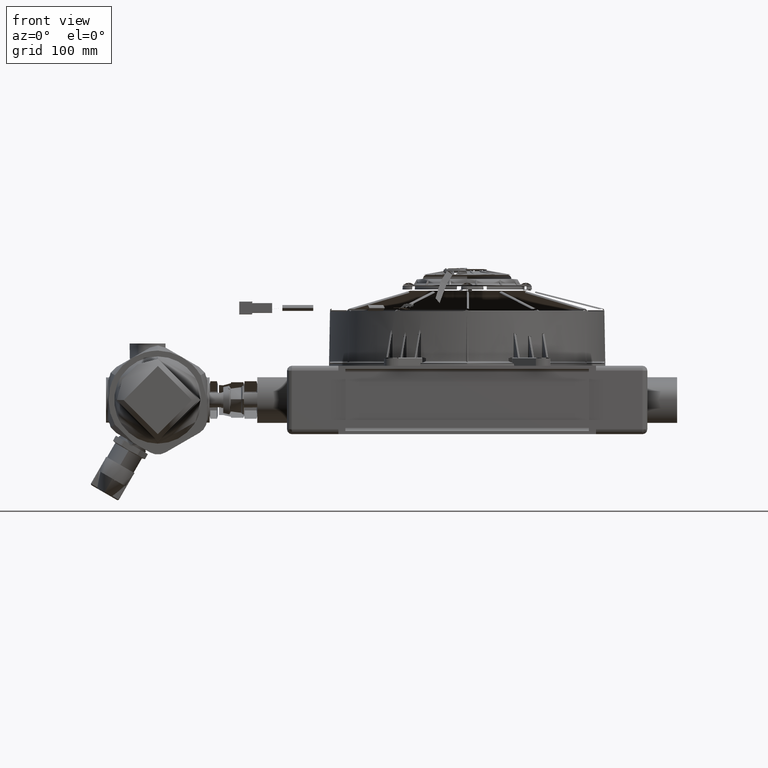
[diagram: clean part render]
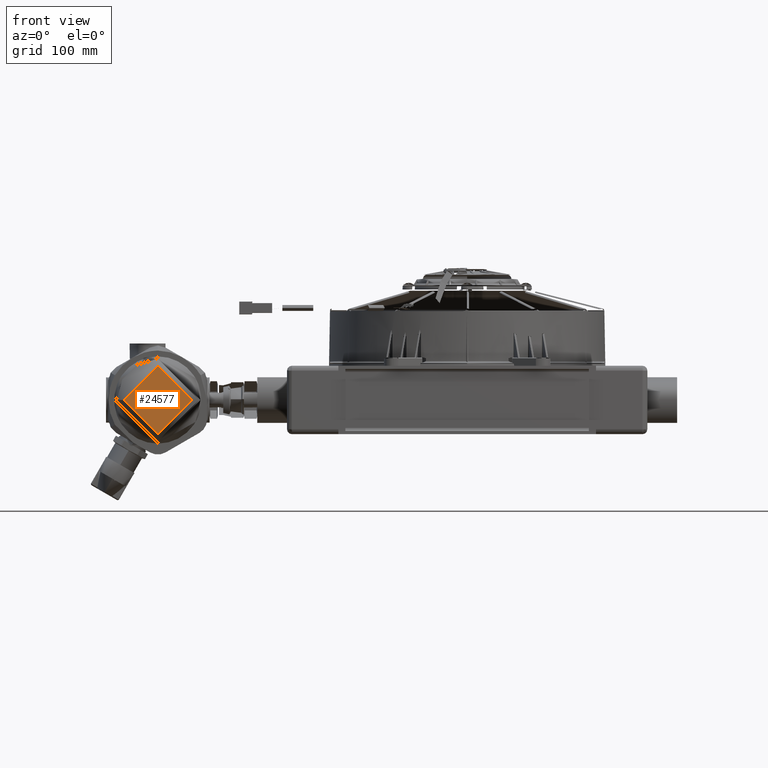
[diagram: same view with one face highlighted and labeled with its STEP entity id]
A machine part, front view. The second image highlights one B-rep face of the part: STEP entity #24577.
In plain terms, the highlighted spherical surface has radius 73 mm.
Its self-contained STEP definition (entity closure, byte-faithful):
#20527 = DIRECTION ( 'NONE',  ( 0.0000000000000000000, -0.4595947340912086010, -0.8881287521500647042 ) ) ;
#24577 = ADVANCED_FACE ( 'NONE', ( #61691 ), #97260, .T. ) ;
#24734 = CIRCLE ( 'NONE', #101986, 1.306370794559774007 ) ;
#43942 = CARTESIAN_POINT ( 'NONE',  ( -11.86764566928910902, -1.139842519685043243, -0.001968503937010047597 ) ) ;
#51184 = CARTESIAN_POINT ( 'NONE',  ( -11.86764566928911080, -3.699796008921577783, -0.001968503937009637769 ) ) ;
#53695 = DIRECTION ( 'NONE',  ( 1.734723475976807094E-16, 1.000000000000000000, 0.0000000000000000000 ) ) ;
#61691 = FACE_OUTER_BOUND ( 'NONE', #114518, .T. ) ;
#72264 = DIRECTION ( 'NONE',  ( 0.0000000000000000000, -0.8881287521500647042, 0.4595947340912086010 ) ) ;
#78687 = DIRECTION ( 'NONE',  ( -1.000000000000000000, 0.0000000000000000000, 0.0000000000000000000 ) ) ;
#93267 = EDGE_CURVE ( 'NONE', #126811, #126811, #24734, .T. ) ;
#97260 = SPHERICAL_SURFACE ( 'NONE', #104752, 2.874015748031495843 ) ;
#101986 = AXIS2_PLACEMENT_3D ( 'NONE', #51184, #53695, #78687 ) ;
#104752 = AXIS2_PLACEMENT_3D ( 'NONE', #43942, #20527, #72264 ) ;
#114518 = EDGE_LOOP ( 'NONE', ( #120484 ) ) ;
#120484 = ORIENTED_EDGE ( 'NONE', *, *, #93267, .F. ) ;
#125982 = CARTESIAN_POINT ( 'NONE',  ( -13.17401646384888458, -3.699796008921577783, -0.001968503937009637769 ) ) ;
#126811 = VERTEX_POINT ( 'NONE', #125982 ) ;